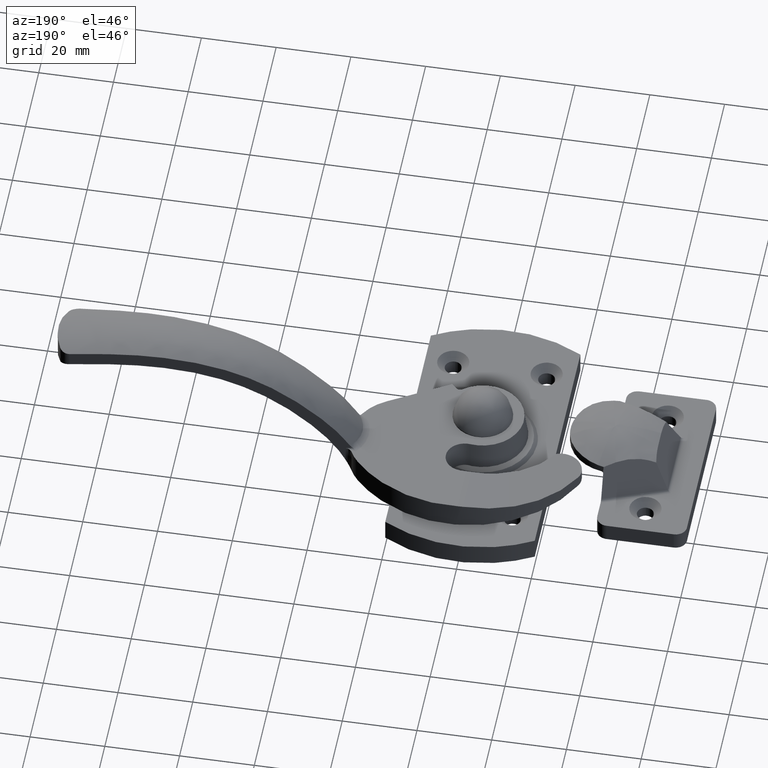
[diagram: clean part render]
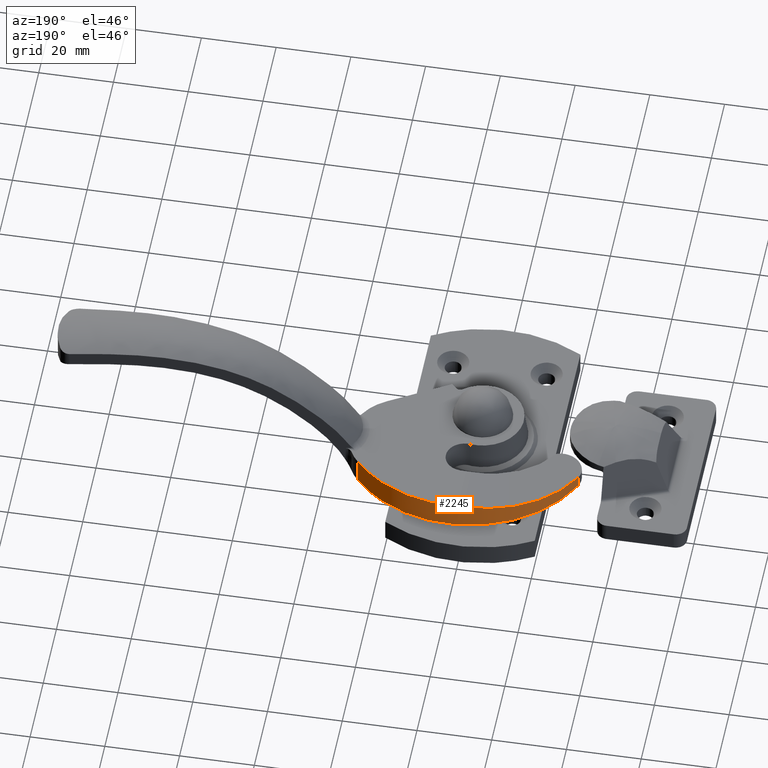
[diagram: same view with one face highlighted and labeled with its STEP entity id]
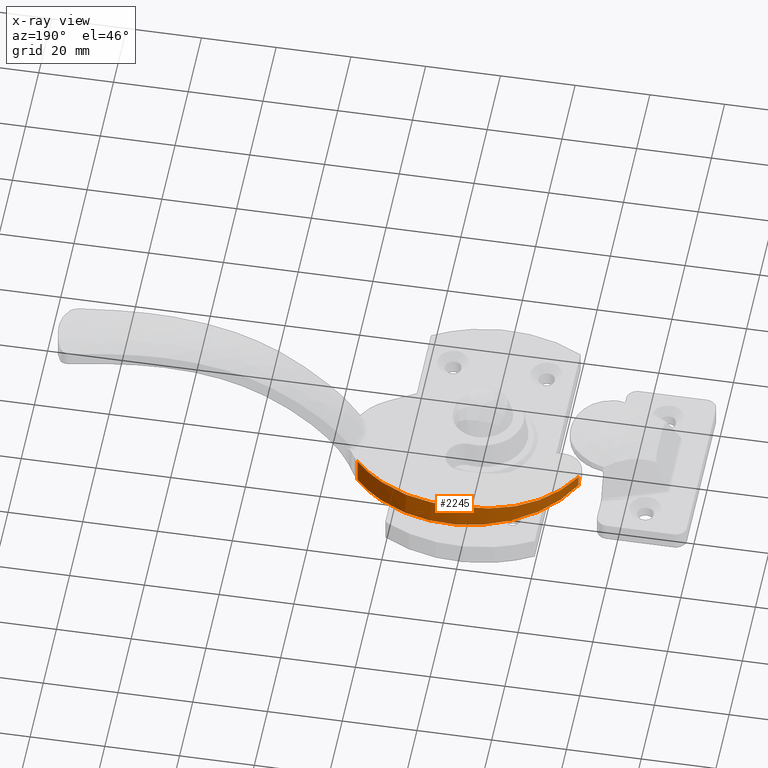
[diagram: x-ray of the same camera — body ghosted, the highlighted face saturated]
A machine part, auxiliary view. The second image highlights one B-rep face of the part: STEP entity #2245.
The next image is the same camera in x-ray: the body ghosted, the highlighted face saturated — about 0% of this face is hidden behind the body in this view.
In plain terms, the highlighted face is a freeform B-spline surface patch.
Its self-contained STEP definition (entity closure, byte-faithful):
#1725=CARTESIAN_POINT('',(0.695914011805402,33.888639587319602,14.600000000000000));
#1726=VERTEX_POINT('',#1725);
#1727=CARTESIAN_POINT('',(-0.689205927027245,33.750111904821900,14.503607562653601));
#1728=VERTEX_POINT('',#1727);
#1729=CARTESIAN_POINT('',(0.695914011805402,33.888639587319602,14.600000000000000));
#1730=CARTESIAN_POINT('',(0.231070635232447,33.851469693445829,14.600000000000000));
#1731=CARTESIAN_POINT('',(-0.230618707097077,33.805206751352692,14.567745635370940));
#1732=CARTESIAN_POINT('',(-0.689205927027245,33.750111904821900,14.503607562653601));
#1733=QUASI_UNIFORM_CURVE('',3,(#1729,#1730,#1731,#1732),.UNSPECIFIED.,.F.,.U.);
#1734=EDGE_CURVE('',#1726,#1728,#1733,.T.);
#1766=CARTESIAN_POINT('',(-28.057494597141400,14.166666696595421,10.675874881518901));
#1767=VERTEX_POINT('',#1766);
#1768=CARTESIAN_POINT('',(-28.057494597141400,14.166666696595421,10.675874881518901));
#1769=CARTESIAN_POINT('',(-19.741939478372775,31.461109103646091,11.838889583444473));
#1770=CARTESIAN_POINT('',(-0.689205927027245,33.750111904821900,14.503607562653601));
#1778=(BOUNDED_CURVE()B_SPLINE_CURVE(2,(#1768,#1769,#1770),.UNSPECIFIED.,.F.,.U.)CURVE()GEOMETRIC_REPRESENTATION_ITEM()QUASI_UNIFORM_CURVE()RATIONAL_B_SPLINE_CURVE((1.0,0.876852612187825,1.0))REPRESENTATION_ITEM(''));
#1779=EDGE_CURVE('',#1767,#1728,#1778,.T.);
#1901=CARTESIAN_POINT('',(-28.057494597141400,14.166666696595421,7.600000000000000));
#1902=VERTEX_POINT('',#1901);
#1918=CARTESIAN_POINT('',(29.568717876136500,22.338282887745699,7.600000000000000));
#1919=VERTEX_POINT('',#1918);
#1920=CARTESIAN_POINT('',(-28.057494597141400,14.166666696595421,7.600000000000000));
#1921=CARTESIAN_POINT('',(-19.950782562954508,31.026763672685295,7.600000000000001));
#1922=CARTESIAN_POINT('',(-1.428287300909487,33.653324031006747,7.600000000000000));
#1923=CARTESIAN_POINT('',(17.094207961135520,36.279884389328195,7.600000000000001));
#1924=CARTESIAN_POINT('',(29.568717876136500,22.338282887745699,7.600000000000000));
#1932=(BOUNDED_CURVE()B_SPLINE_CURVE(2,(#1920,#1921,#1922,#1923,#1924),.UNSPECIFIED.,.F.,.U.)B_SPLINE_CURVE_WITH_KNOTS((3,2,3),(0.0,0.500000000000000,1.0),.UNSPECIFIED.)CURVE()GEOMETRIC_REPRESENTATION_ITEM()RATIONAL_B_SPLINE_CURVE((1.0,0.881922241236639,1.0,0.881922241236639,1.0))REPRESENTATION_ITEM(''));
#1933=EDGE_CURVE('',#1902,#1919,#1932,.T.);
#2061=CARTESIAN_POINT('',(-28.057494597141400,14.166666696595421,7.600000000000000));
#2062=CARTESIAN_POINT('',(-28.057494597141400,14.166666696595421,10.675874881518901));
#2063=QUASI_UNIFORM_CURVE('',1,(#2061,#2062),.UNSPECIFIED.,.F.,.U.);
#2064=EDGE_CURVE('',#1902,#1767,#2063,.T.);
#2205=CARTESIAN_POINT('',(-28.506211650126119,13.195720648979339,7.425000000000000));
#2206=CARTESIAN_POINT('',(-28.506211650126119,13.195720648979339,14.779375000000000));
#2207=CARTESIAN_POINT('',(-5.340900959080160,65.401752803789165,7.424999999999999));
#2208=CARTESIAN_POINT('',(-5.340900959080160,65.401752803789165,14.779375000000002));
#2209=CARTESIAN_POINT('',(30.658183315593231,21.060267215835669,7.425000000000000));
#2210=CARTESIAN_POINT('',(30.658183315593231,21.060267215835669,14.779375000000000));
#2218=(BOUNDED_SURFACE()B_SPLINE_SURFACE(1,2,((#2205,#2207,#2209),(#2206,#2208,#2210)),.UNSPECIFIED.,.F.,.F.,.U.)B_SPLINE_SURFACE_WITH_KNOTS((2,2),(3,3),(0.0,7.354375000000004),(0.0,78.403767186370800),.UNSPECIFIED.)GEOMETRIC_REPRESENTATION_ITEM()RATIONAL_B_SPLINE_SURFACE(((1.0,0.522498564715948,1.0),(1.0,0.522498564715948,1.0)))REPRESENTATION_ITEM('')SURFACE());
#2219=CARTESIAN_POINT('',(29.568717876136500,22.338282887745699,14.600000000000000));
#2220=VERTEX_POINT('',#2219);
#2221=CARTESIAN_POINT('',(0.695914011805392,33.888639587319616,14.600000000000000));
#2222=CARTESIAN_POINT('',(17.996035760973747,35.271995190148175,14.600000000000005));
#2223=CARTESIAN_POINT('',(29.568717876136500,22.338282887745699,14.600000000000000));
#2231=(BOUNDED_CURVE()B_SPLINE_CURVE(2,(#2221,#2222,#2223),.UNSPECIFIED.,.F.,.U.)CURVE()GEOMETRIC_REPRESENTATION_ITEM()QUASI_UNIFORM_CURVE()RATIONAL_B_SPLINE_CURVE((1.0,0.895903426957150,1.0))REPRESENTATION_ITEM(''));
#2232=EDGE_CURVE('',#1726,#2220,#2231,.T.);
#2233=ORIENTED_EDGE('',*,*,#2232,.T.);
#2234=CARTESIAN_POINT('',(29.568717876136500,22.338282887745699,7.600000000000000));
#2235=CARTESIAN_POINT('',(29.568717876136500,22.338282887745699,14.600000000000000));
#2236=QUASI_UNIFORM_CURVE('',1,(#2234,#2235),.UNSPECIFIED.,.F.,.U.);
#2237=EDGE_CURVE('',#1919,#2220,#2236,.T.);
#2238=ORIENTED_EDGE('',*,*,#2237,.F.);
#2239=ORIENTED_EDGE('',*,*,#1933,.F.);
#2240=ORIENTED_EDGE('',*,*,#2064,.T.);
#2241=ORIENTED_EDGE('',*,*,#1779,.T.);
#2242=ORIENTED_EDGE('',*,*,#1734,.F.);
#2243=EDGE_LOOP('',(#2233,#2238,#2239,#2240,#2241,#2242));
#2244=FACE_OUTER_BOUND('',#2243,.T.);
#2245=ADVANCED_FACE('',(#2244),#2218,.T.);